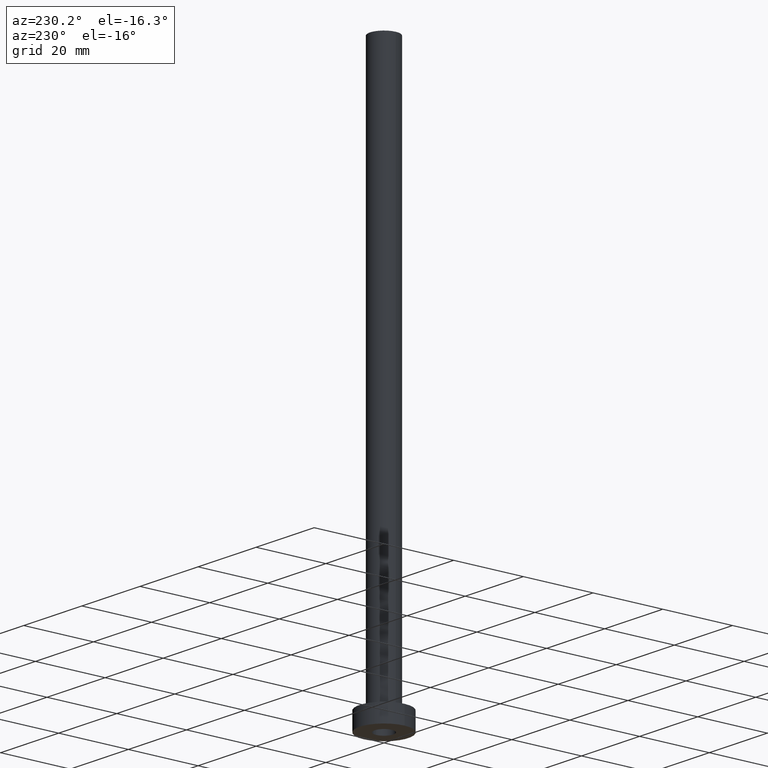
[diagram: clean part render]
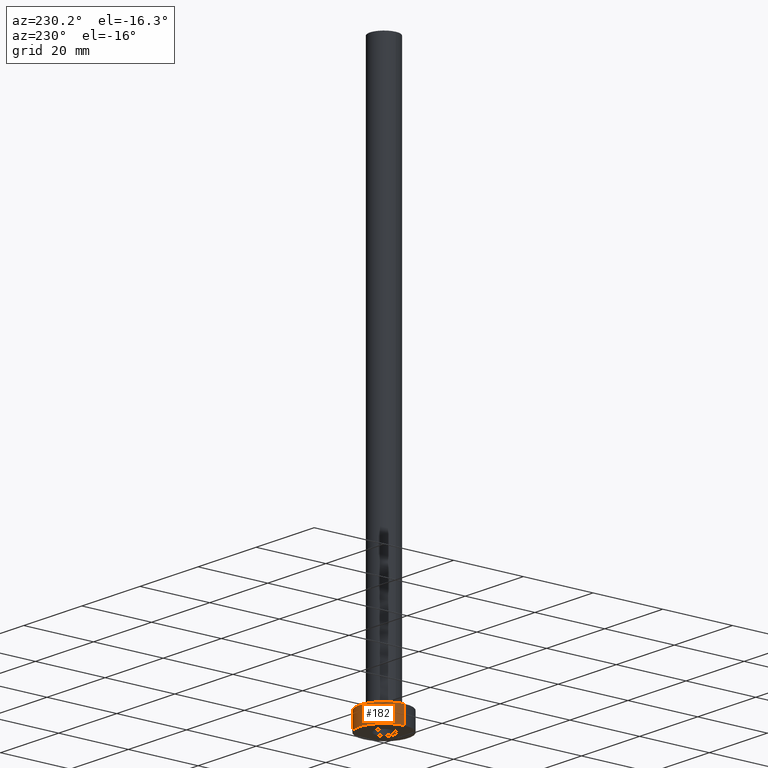
[diagram: same view with one face highlighted and labeled with its STEP entity id]
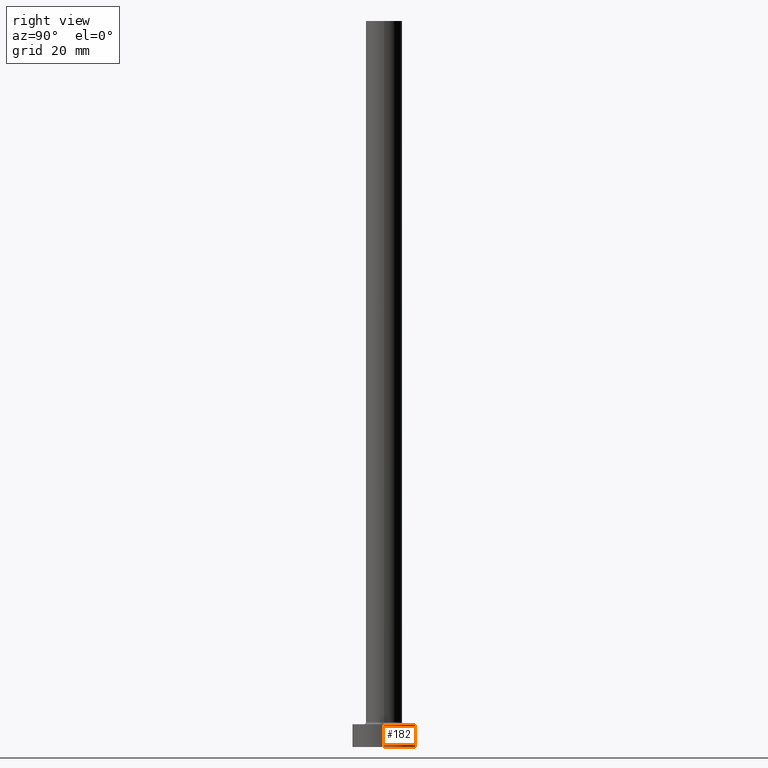
[diagram: same view with one face highlighted and labeled with its STEP entity id]
A machine part, auxiliary view. The second image highlights one B-rep face of the part: STEP entity #182.
A second angle (right view) of the same face is appended — the face is thin or edge-on in the first view.
In plain terms, the highlighted cylindrical surface (edge-blend (fillet) strip) has radius 7 mm, axis along (-0, -0, -1).
Its self-contained STEP definition (entity closure, byte-faithful):
#8 = VERTEX_POINT ( 'NONE', #81 ) ;
#9 = LINE ( 'NONE', #245, #290 ) ;
#12 = ORIENTED_EDGE ( 'NONE', *, *, #438, .F. ) ;
#38 = CARTESIAN_POINT ( 'NONE',  ( 0.000000000000000000, 0.000000000000000000, 5.000000000000000000 ) ) ;
#39 = AXIS2_PLACEMENT_3D ( 'NONE', #363, #53, #331 ) ;
#40 = FACE_OUTER_BOUND ( 'NONE', #224, .T. ) ;
#53 = DIRECTION ( 'NONE',  ( 0.000000000000000000, 0.000000000000000000, 1.000000000000000000 ) ) ;
#78 = VERTEX_POINT ( 'NONE', #263 ) ;
#80 = DIRECTION ( 'NONE',  ( 1.000000000000000000, 0.000000000000000000, 0.000000000000000000 ) ) ;
#81 = CARTESIAN_POINT ( 'NONE',  ( -7.000000000000000000, 0.000000000000000000, 5.000000000000000000 ) ) ;
#90 = ORIENTED_EDGE ( 'NONE', *, *, #252, .T. ) ;
#91 = AXIS2_PLACEMENT_3D ( 'NONE', #38, #380, #80 ) ;
#99 = CARTESIAN_POINT ( 'NONE',  ( 7.000000000000000000, 8.572527594031473190E-16, 0.000000000000000000 ) ) ;
#136 = CIRCLE ( 'NONE', #91, 7.000000000000000000 ) ;
#144 = AXIS2_PLACEMENT_3D ( 'NONE', #436, #335, #261 ) ;
#182 = ADVANCED_FACE ( 'NONE', ( #40 ), #211, .T. ) ;
#194 = DIRECTION ( 'NONE',  ( -0.000000000000000000, -0.000000000000000000, -1.000000000000000000 ) ) ;
#211 = CYLINDRICAL_SURFACE ( 'NONE', #144, 7.000000000000000000 ) ;
#215 = LINE ( 'NONE', #365, #370 ) ;
#224 = EDGE_LOOP ( 'NONE', ( #283, #90, #418, #12 ) ) ;
#245 = CARTESIAN_POINT ( 'NONE',  ( 7.000000000000000000, 8.572527594031473190E-16, 5.000000000000000000 ) ) ;
#252 = EDGE_CURVE ( 'NONE', #78, #303, #9, .T. ) ;
#259 = EDGE_CURVE ( 'NONE', #303, #277, #381, .T. ) ;
#261 = DIRECTION ( 'NONE',  ( -1.000000000000000000, 0.000000000000000000, 0.000000000000000000 ) ) ;
#263 = CARTESIAN_POINT ( 'NONE',  ( 7.000000000000000000, 8.572527594031473190E-16, 5.000000000000000000 ) ) ;
#277 = VERTEX_POINT ( 'NONE', #307 ) ;
#283 = ORIENTED_EDGE ( 'NONE', *, *, #324, .F. ) ;
#290 = VECTOR ( 'NONE', #421, 1000.000000000000000 ) ;
#303 = VERTEX_POINT ( 'NONE', #99 ) ;
#307 = CARTESIAN_POINT ( 'NONE',  ( -7.000000000000000000, 0.000000000000000000, 0.000000000000000000 ) ) ;
#324 = EDGE_CURVE ( 'NONE', #78, #8, #136, .T. ) ;
#331 = DIRECTION ( 'NONE',  ( 1.000000000000000000, 0.000000000000000000, 0.000000000000000000 ) ) ;
#335 = DIRECTION ( 'NONE',  ( -0.000000000000000000, -0.000000000000000000, -1.000000000000000000 ) ) ;
#363 = CARTESIAN_POINT ( 'NONE',  ( 0.000000000000000000, 0.000000000000000000, 0.000000000000000000 ) ) ;
#365 = CARTESIAN_POINT ( 'NONE',  ( -7.000000000000000000, 0.000000000000000000, 5.000000000000000000 ) ) ;
#370 = VECTOR ( 'NONE', #194, 1000.000000000000000 ) ;
#380 = DIRECTION ( 'NONE',  ( 0.000000000000000000, 0.000000000000000000, 1.000000000000000000 ) ) ;
#381 = CIRCLE ( 'NONE', #39, 7.000000000000000000 ) ;
#418 = ORIENTED_EDGE ( 'NONE', *, *, #259, .T. ) ;
#421 = DIRECTION ( 'NONE',  ( -0.000000000000000000, -0.000000000000000000, -1.000000000000000000 ) ) ;
#436 = CARTESIAN_POINT ( 'NONE',  ( 0.000000000000000000, 0.000000000000000000, 5.000000000000000000 ) ) ;
#438 = EDGE_CURVE ( 'NONE', #8, #277, #215, .T. ) ;